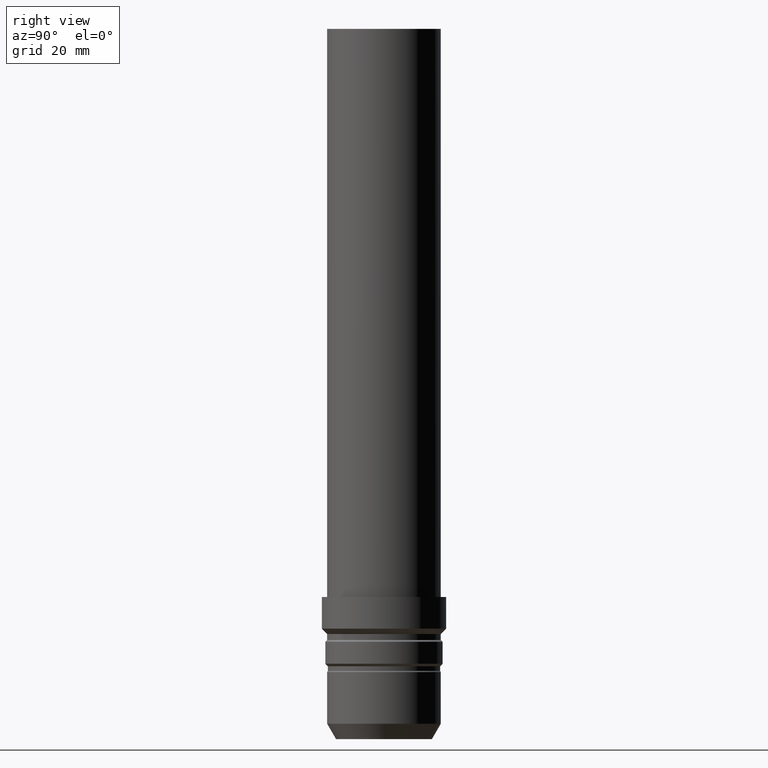
[diagram: clean part render]
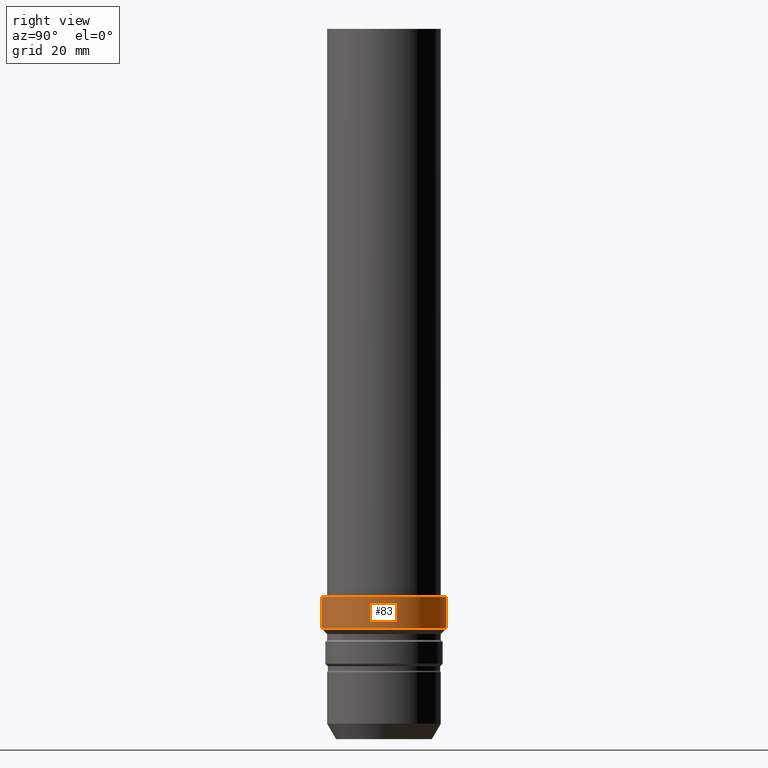
[diagram: same view with one face highlighted and labeled with its STEP entity id]
A machine part, right view. The second image highlights one B-rep face of the part: STEP entity #83.
In plain terms, the highlighted cylindrical surface (bore or boss wall) has radius 17.5 mm, axis along (0, -0, -1).
Its self-contained STEP definition (entity closure, byte-faithful):
#83=ADVANCED_FACE('Unnamed[1]',(#188,#189),#190,.T.);
#96=EDGE_CURVE('Unnamed[1]',#209,#209,#210,.T.);
#116=EDGE_CURVE('Unnamed[1]',#239,#239,#240,.T.);
#188=FACE_BOUND('',#317,.T.);
#189=FACE_BOUND('',#318,.T.);
#190=CYLINDRICAL_SURFACE('',#319,17.5000000000002);
#209=VERTEX_POINT('',#343);
#210=CIRCLE('',#344,17.5000000000002);
#239=VERTEX_POINT('',#380);
#240=CIRCLE('',#381,17.5000000000002);
#317=EDGE_LOOP('',(#447));
#318=EDGE_LOOP('',(#448));
#319=AXIS2_PLACEMENT_3D('',#449,#450,#451);
#343=CARTESIAN_POINT('',(-2.44929359829466E-015,17.5000000000002,39.9999999999992));
#344=AXIS2_PLACEMENT_3D('',#472,#473,#474);
#380=CARTESIAN_POINT('',(-1.90432577267407E-015,17.5000000000002,31.099999999999));
#381=AXIS2_PLACEMENT_3D('',#503,#504,#505);
#447=ORIENTED_EDGE('',*,*,#116,.F.);
#448=ORIENTED_EDGE('',*,*,#96,.T.);
#449=CARTESIAN_POINT('',(-2.17680968548436E-015,3.81655885498224E-014,35.5499999999991));
#450=DIRECTION('',(6.12323399573677E-017,-1.07357492404567E-015,-1.0));
#451=DIRECTION('',(6.09103519880942E-032,1.0,-1.07357492404567E-015));
#472=CARTESIAN_POINT('',(-2.44929359829466E-015,4.29429969618257E-014,39.9999999999992));
#473=DIRECTION('',(6.12323399573676E-017,-1.07357492404567E-015,-1.0));
#474=DIRECTION('',(6.09103519880942E-032,1.0,-1.07357492404567E-015));
#503=CARTESIAN_POINT('',(-1.90432577267407E-015,3.33881801378191E-014,31.099999999999));
#504=DIRECTION('',(6.12323399573677E-017,-1.07357492404567E-015,-1.0));
#505=DIRECTION('',(6.09103519880941E-032,1.0,-1.07357492404567E-015));